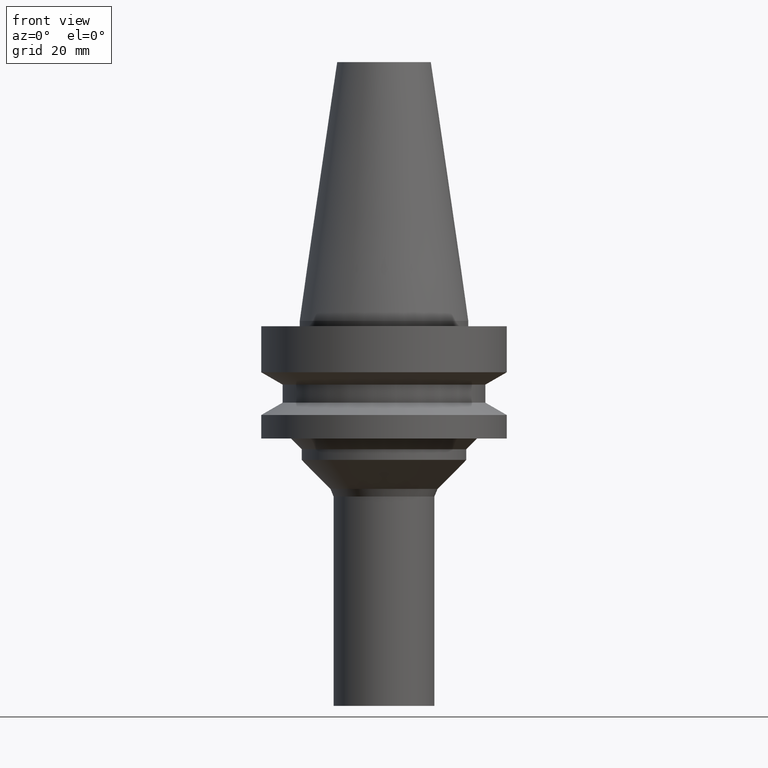
[diagram: clean part render]
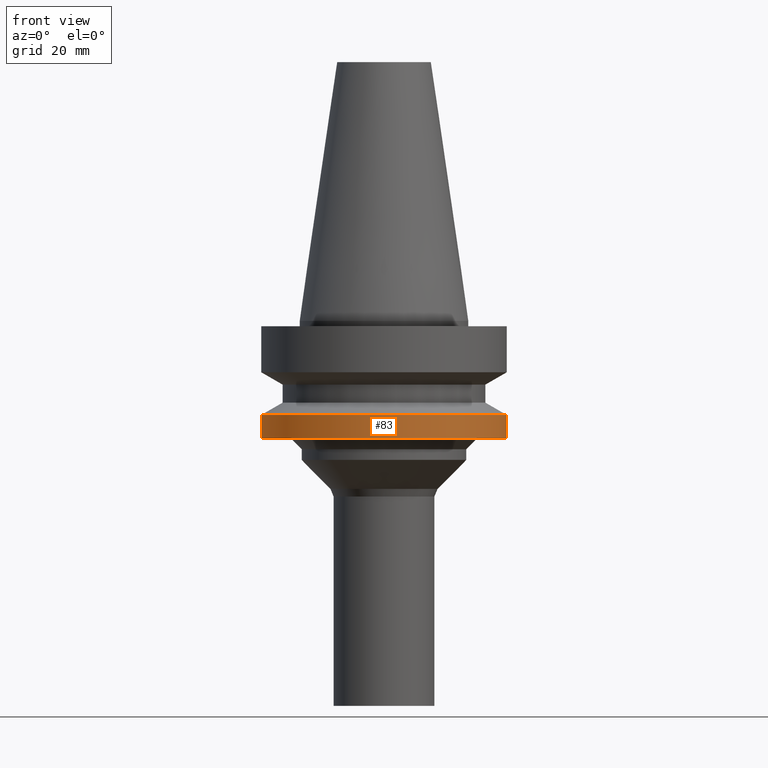
[diagram: same view with one face highlighted and labeled with its STEP entity id]
A machine part, front view. The second image highlights one B-rep face of the part: STEP entity #83.
In plain terms, the highlighted cylindrical surface (bore or boss wall) has radius 23 mm, axis along (0, 0, -1).
Its self-contained STEP definition (entity closure, byte-faithful):
#83=ADVANCED_FACE('',(#114,#115),#116,.T.);
#114=FACE_BOUND('',#160,.T.);
#115=FACE_BOUND('',#161,.T.);
#116=CYLINDRICAL_SURFACE('',#162,23.0);
#160=EDGE_LOOP('',(#222));
#161=EDGE_LOOP('',(#223));
#162=AXIS2_PLACEMENT_3D('',#224,#225,#226);
#222=ORIENTED_EDGE('',*,*,#270,.F.);
#223=ORIENTED_EDGE('',*,*,#269,.T.);
#224=CARTESIAN_POINT('',(1.21240033115588E-015,2.42480066231176E-015,-19.8));
#225=DIRECTION('',(6.12323399573677E-017,1.22464679914735E-016,-1.0));
#226=DIRECTION('',(-1.23259516440783E-032,1.0,1.22464679914735E-016));
#269=EDGE_CURVE('',#291,#291,#292,.T.);
#270=EDGE_CURVE('',#293,#293,#294,.T.);
#291=VERTEX_POINT('',#321);
#292=CIRCLE('',#322,23.0);
#293=VERTEX_POINT('',#323);
#294=CIRCLE('',#324,23.0);
#321=CARTESIAN_POINT('',(1.34711147906209E-015,23.0,-22.0));
#322=AXIS2_PLACEMENT_3D('',#358,#359,#360);
#323=CARTESIAN_POINT('',(1.07768918324967E-015,23.0,-17.6));
#324=AXIS2_PLACEMENT_3D('',#361,#362,#363);
#358=CARTESIAN_POINT('',(1.34711147906209E-015,2.69422295812418E-015,-22.0));
#359=DIRECTION('',(-6.12323399573677E-017,-1.22464679914735E-016,1.0));
#360=DIRECTION('',(-1.23259516440783E-032,1.0,1.22464679914735E-016));
#361=CARTESIAN_POINT('',(1.07768918324967E-015,2.15537836649934E-015,-17.6));
#362=DIRECTION('',(-6.12323399573677E-017,-1.22464679914735E-016,1.0));
#363=DIRECTION('',(-1.23259516440783E-032,1.0,1.22464679914735E-016));